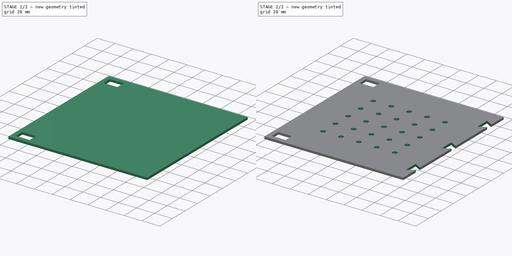
[diagram: build sequence overview — one tinted view per stage of 2, left to right]
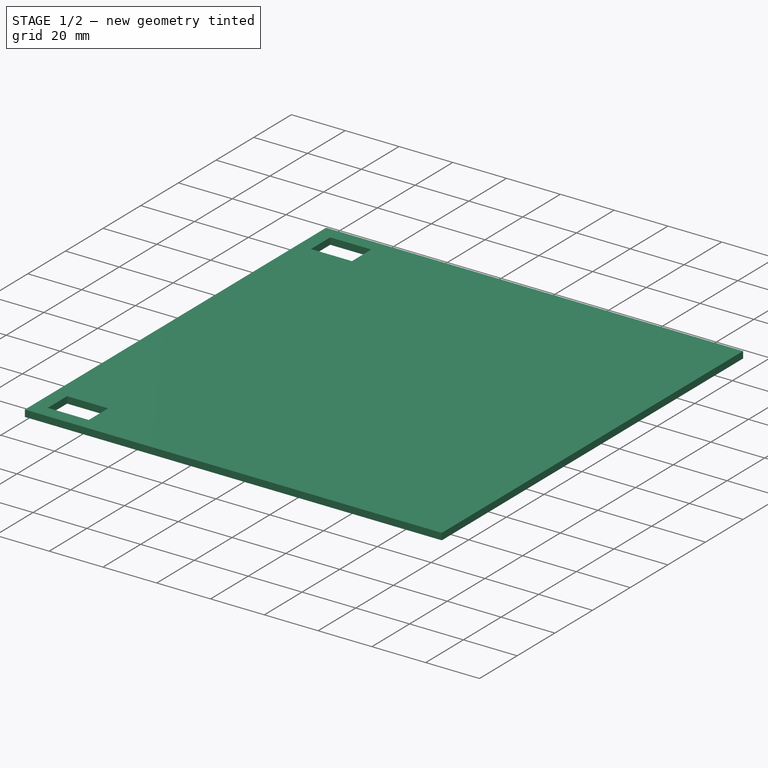
[diagram: stage 1 of 2 — iso view after this stage's code; geometry added in this stage tinted green]
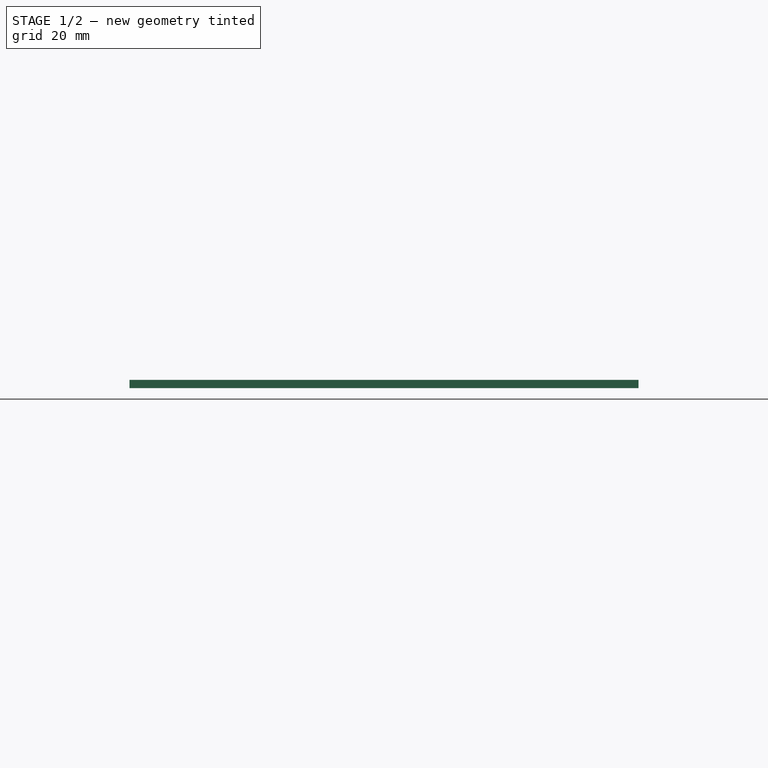
[diagram: stage 1 of 2 — front view after this stage's code; geometry added in this stage tinted green]
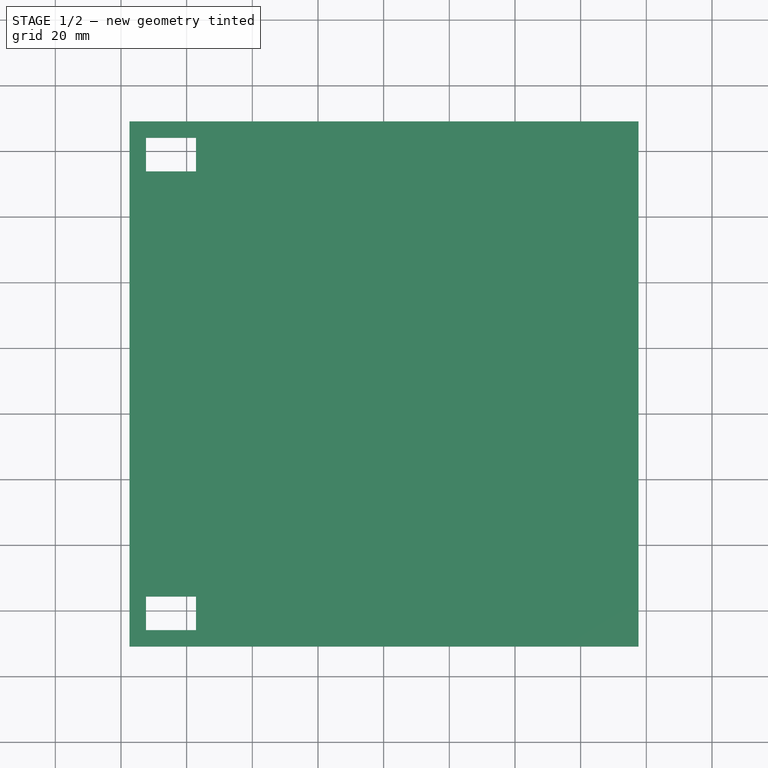
[diagram: stage 1 of 2 — top view after this stage's code; geometry added in this stage tinted green]
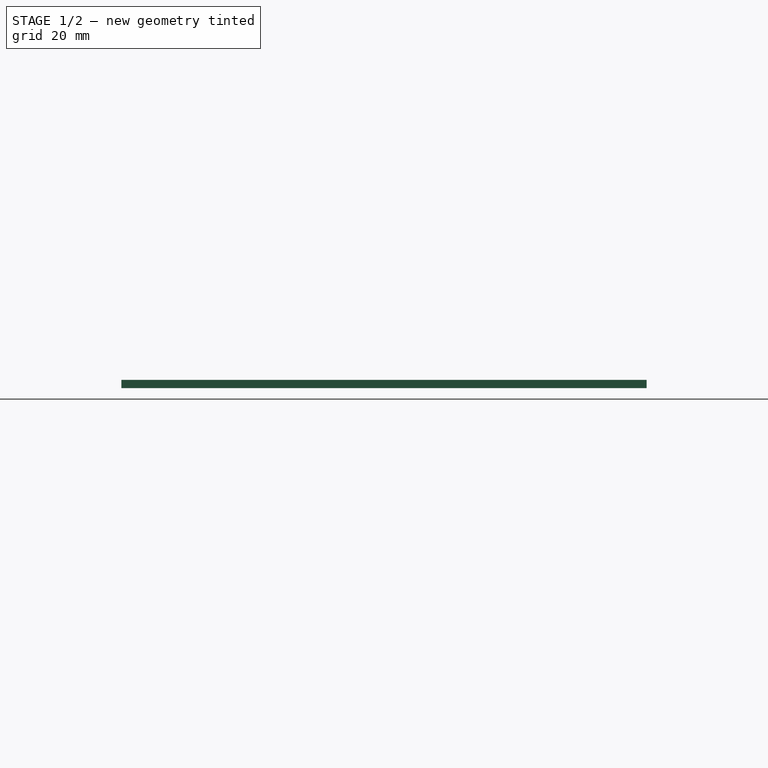
[diagram: stage 1 of 2 — right view after this stage's code; geometry added in this stage tinted green]
FCSTD DOCUMENT  (FreeCAD 0.21R33771 (Git))
Label: PlateA-2
License: All rights reserved
LicenseURL: https://en.wikipedia.org/wiki/All_rights_reserved
objects: Sketcher::SketchObject×4, PartDesign::Pocket×3, PartDesign::Pad×1, PartDesign::Body×1
note: 13 computed .brp shape members not serialized (recipe doc carries the construction recipe); baked Part::Feature solids carry a one-line shape summary decoded from their .brp

FEATURE [Sketcher::SketchObject] Sketch
  FullyConstrained = false
  MapMode = 5
  Support = -> [XY_Plane]
  sketch-geometry (4):
    g0: LineSegment StartX=-77.3933 StartY=-110.909 StartZ=0 EndX=-77.3933 EndY=49.0909 EndZ=0
    g1: LineSegment StartX=-77.3933 StartY=49.0909 StartZ=0 EndX=77.6067 EndY=49.0909 EndZ=0
    g2: LineSegment StartX=77.6067 StartY=49.0909 StartZ=0 EndX=77.6067 EndY=-110.909 EndZ=0
    g3: LineSegment StartX=77.6067 StartY=-110.909 StartZ=0 EndX=-77.3933 EndY=-110.909 EndZ=0
  constraints (10):
    c: Vertical(g0)
    c: Coincident(g0,g1)
    c: Horizontal(g1)
    c: Coincident(g1,g2)
    c: Vertical(g2)
    c: Coincident(g2,g3)
    c: Coincident(g3,g0)
    c: Horizontal(g3)
    c: DistanceX(g0,g1) = 155
    c: DistanceY(g0,g0) = 160
FEATURE [PartDesign::Pad] Pad
  Direction = (0,0,1)
  Length = 2.5
  Length2 = 10
  Profile = -> Sketch
  ReferenceAxis = -> Sketch [N_Axis]
  Type = 0
FEATURE [Sketcher::SketchObject] Sketch001
  ExternalGeometry = -> [Pad]
  FullyConstrained = true
  MapMode = 5
  Placement = pos=(0,0,2.5) rot=(0,0,1;0rad)
  Support = -> [Pad]
  sketch-geometry (8):
    g0: LineSegment StartX=-72.3933 StartY=44.0909 StartZ=0 EndX=-57.1433 EndY=44.0909 EndZ=0
    g1: LineSegment StartX=-57.1433 StartY=44.0909 StartZ=0 EndX=-57.1433 EndY=33.8409 EndZ=0
    g2: LineSegment StartX=-57.1433 StartY=33.8409 StartZ=0 EndX=-72.3933 EndY=33.8409 EndZ=0
    g3: LineSegment StartX=-72.3933 StartY=33.8409 StartZ=0 EndX=-72.3933 EndY=44.0909 EndZ=0
    g4: LineSegment StartX=-72.3933 StartY=-105.909 StartZ=0 EndX=-72.3933 EndY=-95.6591 EndZ=0
    g5: LineSegment StartX=-72.3933 StartY=-95.6591 StartZ=0 EndX=-57.1433 EndY=-95.6591 EndZ=0
    g6: LineSegment StartX=-57.1433 StartY=-95.6591 StartZ=0 EndX=-57.1433 EndY=-105.909 EndZ=0
    g7: LineSegment StartX=-57.1433 StartY=-105.909 StartZ=0 EndX=-72.3933 EndY=-105.909 EndZ=0
  constraints (25):
    c: Horizontal(g0)
    c: Coincident(g0,g1)
    c: Vertical(g1)
    c: Coincident(g1,g2)
    c: Horizontal(g2)
    c: Coincident(g2,g3)
    c: Coincident(g3,g0)
    c: Vertical(g4)
    c: Coincident(g4,g5)
    c: Coincident(g5,g6)
    c: Vertical(g6)
    c: Coincident(g6,g7)
    c: Coincident(g7,g4)
    c: Horizontal(g7)
    c: Horizontal(g5)
    c: DistanceY(g-3,g4) = 5
    c: DistanceY(g0,g-3) = 5
    c: DistanceX(g-3,g0) = 5
    c: DistanceX(g-3,g-3) = 0
    c: DistanceX(g-3,g4) = 5
    c: Vertical(g3)
    c: DistanceX(g0,g0) = 15.25
    c: DistanceX(g4,g5) = 15.25
    c: DistanceY(g6,g5) = 10.25
    c: DistanceY(g1,g0) = 10.25
FEATURE [PartDesign::Pocket] Pocket
  BaseFeature = -> Pad
  Direction = (0,0,-1)
  Length = 2.5
  Length2 = 5
  Profile = -> Sketch001
  ReferenceAxis = -> Sketch001 [N_Axis]
  Type = 0
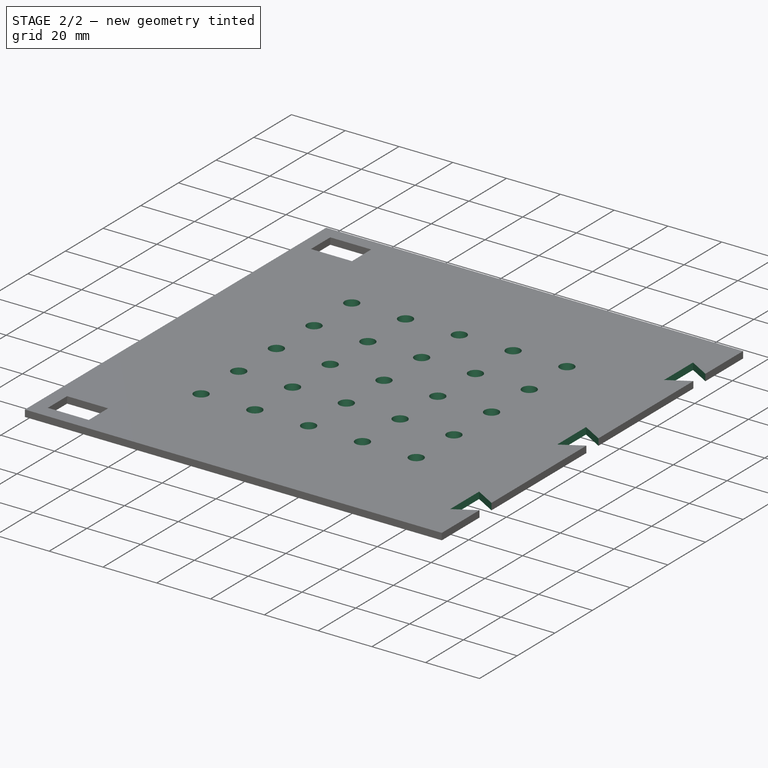
[diagram: stage 2 of 2 — iso view after this stage's code; geometry added in this stage tinted green]
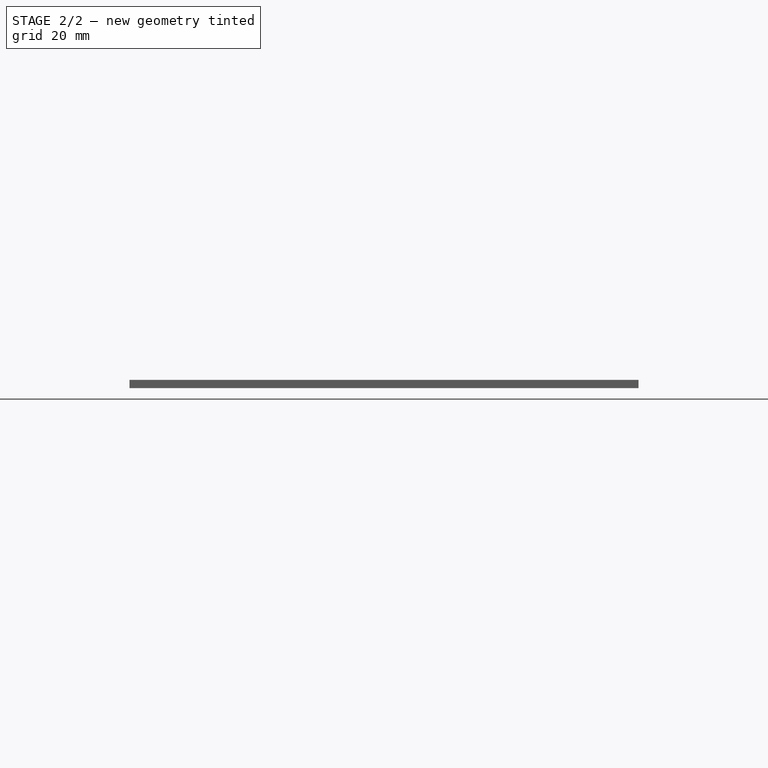
[diagram: stage 2 of 2 — front view after this stage's code; geometry added in this stage tinted green]
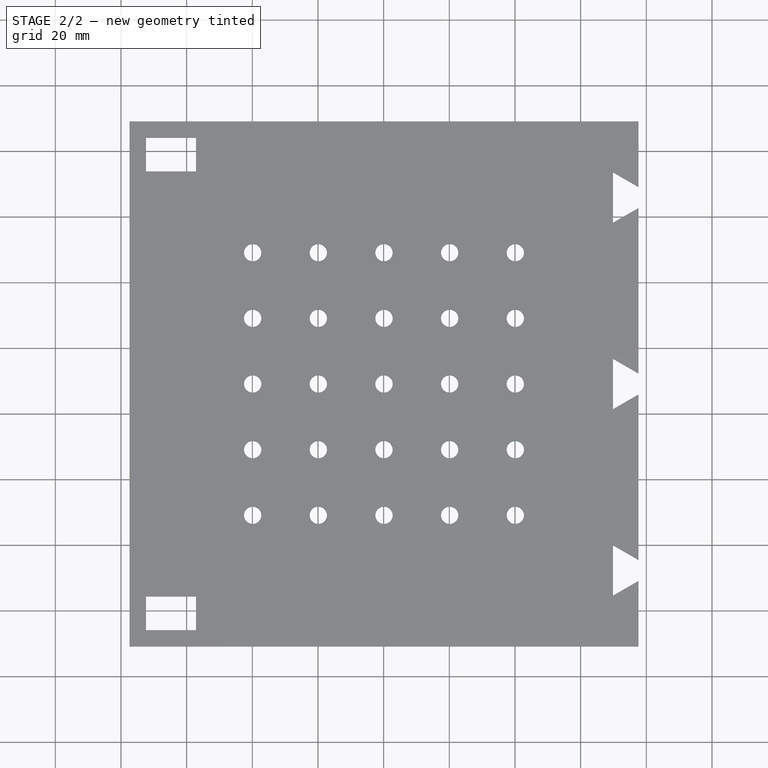
[diagram: stage 2 of 2 — top view after this stage's code; geometry added in this stage tinted green]
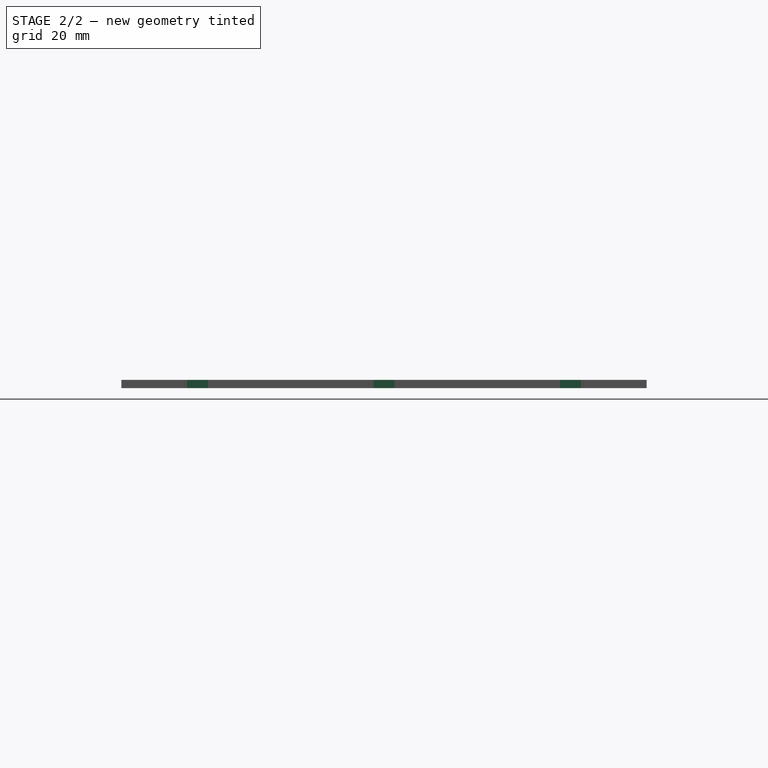
[diagram: stage 2 of 2 — right view after this stage's code; geometry added in this stage tinted green]
FEATURE [Sketcher::SketchObject] Sketch002
  ExternalGeometry = -> [Pocket]
  FullyConstrained = true
  MapMode = 5
  Placement = pos=(0,0,2.5) rot=(0,0,1;0rad)
  Support = -> [Pocket]
  sketch-geometry (26):
    g0: GeomPoint X=0.10674 Y=-30.9091 Z=0
    g1: Circle CenterX=-19.8933 CenterY=-30.9091 CenterZ=0 NormalX=0 NormalY=0 NormalZ=1 AngleXU=0 Radius=2.625
    g2: Circle CenterX=-39.8933 CenterY=-30.9091 CenterZ=0 NormalX=0 NormalY=0 NormalZ=1 AngleXU=0 Radius=2.625
    g3: Circle CenterX=0.10674 CenterY=-30.9091 CenterZ=0 NormalX=0 NormalY=0 NormalZ=1 AngleXU=0 Radius=2.625
    g4: Circle CenterX=20.1067 CenterY=-30.9091 CenterZ=0 NormalX=0 NormalY=0 NormalZ=1 AngleXU=0 Radius=2.625
    g5: Circle CenterX=40.1067 CenterY=-30.9091 CenterZ=0 NormalX=0 NormalY=0 NormalZ=1 AngleXU=0 Radius=2.625
    g6: Circle CenterX=-39.8933 CenterY=-10.9091 CenterZ=0 NormalX=0 NormalY=0 NormalZ=1 AngleXU=0 Radius=2.625
    g7: Circle CenterX=-19.8933 CenterY=-10.9091 CenterZ=0 NormalX=0 NormalY=0 NormalZ=1 AngleXU=0 Radius=2.625
    g8: Circle CenterX=0.10674 CenterY=-10.9091 CenterZ=0 NormalX=0 NormalY=0 NormalZ=1 AngleXU=0 Radius=2.625
    g9: Circle CenterX=20.1067 CenterY=-10.9091 CenterZ=0 NormalX=0 NormalY=0 NormalZ=1 AngleXU=0 Radius=2.625
    g10: Circle CenterX=40.1067 CenterY=-10.9091 CenterZ=0 NormalX=0 NormalY=0 NormalZ=1 AngleXU=0 Radius=2.625
    g11: Circle CenterX=-39.8933 CenterY=-50.9091 CenterZ=0 NormalX=0 NormalY=0 NormalZ=1 AngleXU=0 Radius=2.625
    g12: Circle CenterX=-19.8933 CenterY=-50.9091 CenterZ=0 NormalX=0 NormalY=0 NormalZ=1 AngleXU=0 Radius=2.625
    g13: Circle CenterX=0.10674 CenterY=-50.9091 CenterZ=0 NormalX=0 NormalY=0 NormalZ=1 AngleXU=0 Radius=2.625
    g14: Circle CenterX=20.1067 CenterY=-50.9091 CenterZ=0 NormalX=0 NormalY=0 NormalZ=1 AngleXU=0 Radius=2.625
    g15: Circle CenterX=40.1067 CenterY=-50.9091 CenterZ=0 NormalX=0 NormalY=0 NormalZ=1 AngleXU=0 Radius=2.625
    g16: Circle CenterX=-39.8933 CenterY=-70.9091 CenterZ=0 NormalX=0 NormalY=0 NormalZ=1 AngleXU=0 Radius=2.625
    g17: Circle CenterX=-19.8933 CenterY=-70.9091 CenterZ=0 NormalX=0 NormalY=0 NormalZ=1 AngleXU=0 Radius=2.625
    g18: Circle CenterX=0.10674 CenterY=-70.9091 CenterZ=0 NormalX=0 NormalY=0 NormalZ=1 AngleXU=0 Radius=2.625
    g19: Circle CenterX=20.1067 CenterY=-70.9091 CenterZ=0 NormalX=0 NormalY=0 NormalZ=1 AngleXU=0 Radius=2.625
    g20: Circle CenterX=40.1067 CenterY=-70.9091 CenterZ=0 NormalX=0 NormalY=0 NormalZ=1 AngleXU=0 Radius=2.625
    g21: Circle CenterX=-39.8933 CenterY=9.09091 CenterZ=0 NormalX=0 NormalY=0 NormalZ=1 AngleXU=0 Radius=2.625
    g22: Circle CenterX=-19.8933 CenterY=9.09091 CenterZ=0 NormalX=0 NormalY=0 NormalZ=1 AngleXU=0 Radius=2.625
    g23: Circle CenterX=0.10674 CenterY=9.09091 CenterZ=0 NormalX=0 NormalY=0 NormalZ=1 AngleXU=0 Radius=2.625
    g24: Circle CenterX=20.1067 CenterY=9.09091 CenterZ=0 NormalX=0 NormalY=0 NormalZ=1 AngleXU=0 Radius=2.625
    g25: Circle CenterX=40.1067 CenterY=9.09091 CenterZ=0 NormalX=0 NormalY=0 NormalZ=1 AngleXU=0 Radius=2.625
  constraints (76):
    c: DistanceX(g0,g-4) = 77.5
    c: DistanceY(g0,g-4) = 80
    c: Diameter(g25) = 5.25
    c: Diameter(g24) = 5.25
    c: Diameter(g23) = 5.25
    c: Diameter(g22) = 5.25
    c: Diameter(g21) = 5.25
    c: Diameter(g6) = 5.25
    c: Diameter(g7) = 5.25
    c: Diameter(g8) = 5.25
    c: Diameter(g9) = 5.25
    c: Diameter(g10) = 5.25
    c: Diameter(g2) = 5.25
    c: Diameter(g1) = 5.25
    c: Diameter(g3) = 5.25
    c: Diameter(g4) = 5.25
    c: Diameter(g5) = 5.25
    c: Diameter(g15) = 5.25
    c: Diameter(g14) = 5.25
    c: Diameter(g13) = 5.25
    c: Diameter(g12) = 5.25
    c: Diameter(g11) = 5.25
    c: Diameter(g16) = 5.25
    c: Diameter(g17) = 5.25
    c: Diameter(g18) = 5.25
    c: Diameter(g19) = 5.25
    c: Diameter(g20) = 5.25
    c: Coincident(g3,g0)
    c: DistanceX(g3,g4) = 20
    c: DistanceX(g3,g5) = 40
    c: DistanceX(g1,g3) = 20
    c: DistanceX(g2,g3) = 40
    c: DistanceY(g3,g2) = 0
    c: DistanceY(g3,g1) = 0
    c: DistanceY(g4,g5) = 0
    c: DistanceY(g3,g4) = 0
    c: DistanceY(g2,g6) = 20
    c: DistanceY(g2,g21) = 40
    c: DistanceY(g11,g2) = 20
    c: DistanceY(g16,g11) = 20
    c: DistanceX(g2,g11) = 0
    c: DistanceX(g11,g16) = 0
    c: DistanceX(g6,g2) = 0
    c: DistanceX(g21,g6) = 0
    c: DistanceY(g21,g22) = 0
    c: DistanceY(g21,g23) = 0
    c: DistanceY(g21,g24) = 0
    c: DistanceY(g21,g25) = 0
    c: DistanceY(g6,g7) = 0
    c: DistanceY(g8,g6) = 0
    c: DistanceY(g6,g9) = 0
    c: DistanceY(g6,g10) = 0
    c: DistanceY(g12,g11) = 0
    c: DistanceY(g11,g13) = 0
    c: DistanceY(g11,g14) = 0
    c: DistanceY(g11,g15) = 0
    c: DistanceY(g16,g17) = 0
    c: DistanceY(g17,g18) = 0
    c: DistanceY(g18,g19) = 0
    c: DistanceY(g19,g20) = 0
    c: DistanceX(g7,g1) = 0
    c: DistanceX(g22,g7) = 0
    c: DistanceX(g23,g8) = 0
    c: DistanceX(g8,g3) = 0
    c: DistanceX(g24,g9) = 0
    c: DistanceX(g9,g4) = 0
    c: DistanceX(g25,g10) = 0
    c: DistanceX(g10,g5) = 0
    c: DistanceX(g5,g15) = 0
    c: DistanceX(g15,g20) = 0
    c: DistanceX(g14,g19) = 0
    c: DistanceX(g4,g14) = 0
    c: DistanceX(g13,g18) = 0
    c: DistanceX(g3,g13) = 0
    c: DistanceX(g12,g17) = 0
    c: DistanceX(g1,g12) = 0
FEATURE [PartDesign::Pocket] Pocket001
  BaseFeature = -> Pocket
  Direction = (0,0,-1)
  Length = 2.5
  Length2 = 5
  Profile = -> Sketch002
  ReferenceAxis = -> Sketch002 [N_Axis]
  Type = 0
FEATURE [Sketcher::SketchObject] Sketch003
  ExternalGeometry = -> [Pocket001]
  FullyConstrained = true
  MapMode = 5
  Placement = pos=(0,0,2.5) rot=(0,0,1;0rad)
  Support = -> [Pocket001]
  sketch-geometry (12):
    g0: LineSegment StartX=77.6067 StartY=-90.9091 StartZ=0 EndX=69.8567 EndY=-95.3836 EndZ=0
    g1: LineSegment StartX=69.8567 StartY=-95.3836 StartZ=0 EndX=69.8567 EndY=-80.0336 EndZ=0
    g2: LineSegment StartX=69.8567 StartY=-80.0336 StartZ=0 EndX=77.6067 EndY=-84.508 EndZ=0
    g3: LineSegment StartX=77.6067 StartY=-84.508 StartZ=0 EndX=77.6067 EndY=-90.9091 EndZ=0
    g4: LineSegment StartX=77.6067 StartY=-34.1102 StartZ=0 EndX=69.8567 EndY=-38.5846 EndZ=0
    g5: LineSegment StartX=69.8567 StartY=-38.5846 StartZ=0 EndX=69.8567 EndY=-23.2346 EndZ=0
    g6: LineSegment StartX=69.8567 StartY=-23.2346 StartZ=0 EndX=77.6067 EndY=-27.7091 EndZ=0
    g7: LineSegment StartX=77.6067 StartY=-27.7091 StartZ=0 EndX=77.6067 EndY=-34.1102 EndZ=0
    g8: LineSegment StartX=77.6067 StartY=22.6898 StartZ=0 EndX=69.8567 EndY=18.2154 EndZ=0
    g9: LineSegment StartX=69.8567 StartY=18.2154 StartZ=0 EndX=69.8567 EndY=33.5654 EndZ=0
    g10: LineSegment StartX=69.8567 StartY=33.5654 StartZ=0 EndX=77.6067 EndY=29.0909 EndZ=0
    g11: LineSegment StartX=77.6067 StartY=29.0909 StartZ=0 EndX=77.6067 EndY=22.6898 EndZ=0
  constraints (37):
    c: Coincident(g0,g1)
    c: Vertical(g1)
    c: Coincident(g1,g2)
    c: Coincident(g2,g3)
    c: Coincident(g3,g0)
    c: Vertical(g3)
    c: Coincident(g4,g5)
    c: Vertical(g5)
    c: Coincident(g5,g6)
    c: Coincident(g6,g7)
    c: Coincident(g7,g4)
    c: Vertical(g7)
    c: Coincident(g8,g9)
    c: Vertical(g9)
    c: Coincident(g9,g10)
    c: Coincident(g10,g11)
    c: Coincident(g11,g8)
    c: PointOnObject(g8,g-3)
    c: PointOnObject(g4,g-3)
    c: PointOnObject(g0,g-3)
    c: Vertical(g11)
    c: Angle(g9,g10) = 1.0472
    c: Angle(g8,g9) = 1.0472
    c: Angle(g5,g6) = 1.0472
    c: Angle(g4,g5) = 1.0472
    c: Angle(g1,g2) = 1.0472
    c: Angle(g0,g1) = 1.0472
    c: DistanceX(g9,g-3) = 7.75
    c: DistanceX(g8,g5) = 0
    c: DistanceX(g4,g1) = 0
    c: DistanceY(g8,g9) = 15.35
    c: DistanceY(g4,g5) = 15.35
    c: DistanceY(g0,g1) = 15.35
    c: DistanceY(g10,g-3) = 20
    c: DistanceY(g-3,g0) = 20
    c: DistanceY(g6,g-3) = 76.8
    c: DistanceY(g-3,g-3) = 160
FEATURE [PartDesign::Pocket] Pocket002
  BaseFeature = -> Pocket001
  Direction = (0,0,-1)
  Length = 2.5
  Length2 = 5
  Profile = -> Sketch003
  ReferenceAxis = -> Sketch003 [N_Axis]
  Type = 0
FEATURE [PartDesign::Body] Body
  Group = -> [Sketch,Pad,Sketch001,Pocket,Sketch002,Pocket001,Sketch003,Pocket002]
  Origin = -> Origin
  Tip = -> Pocket002
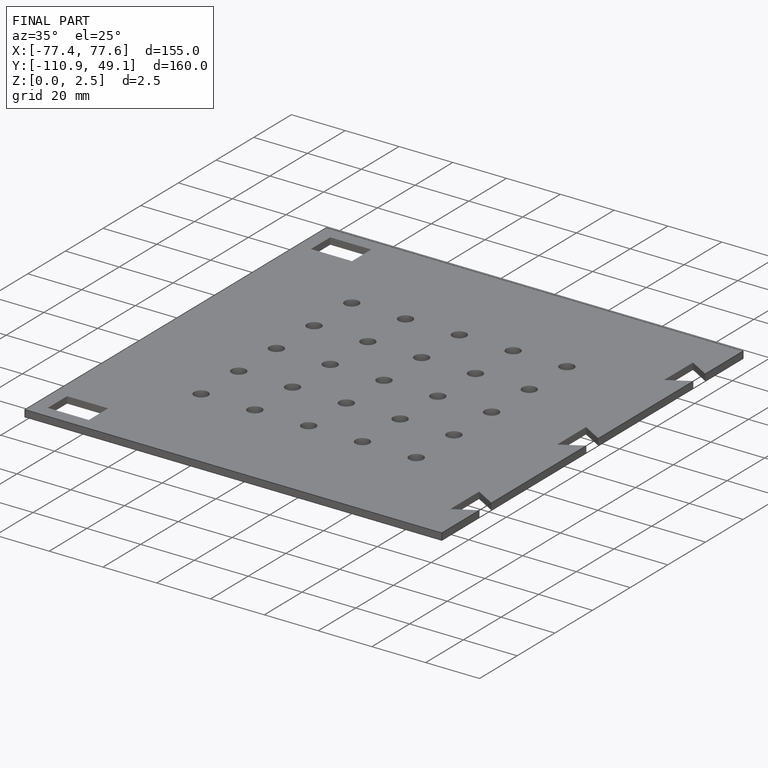
[diagram: finished part — iso view with bounding-box wireframe]
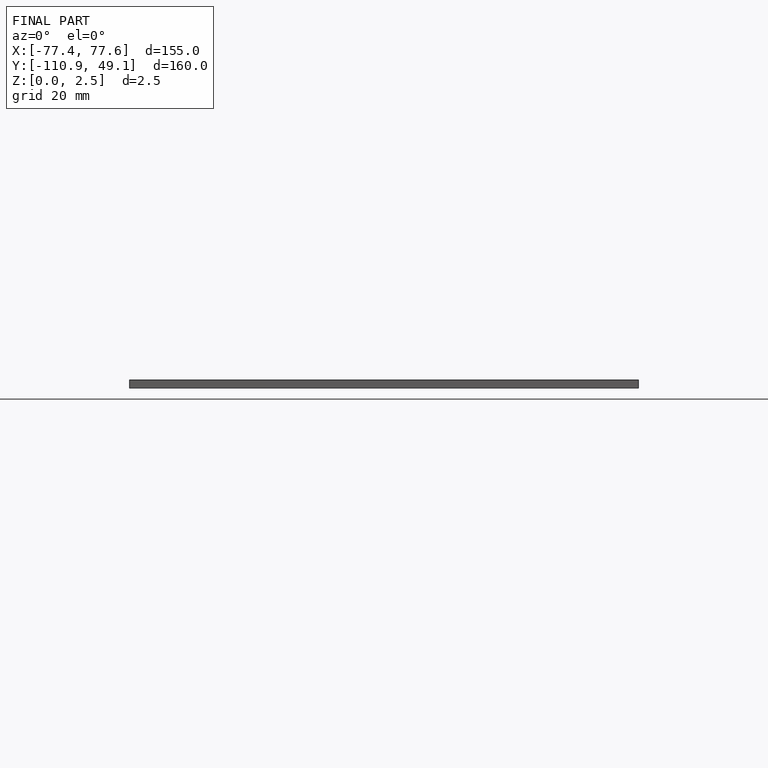
[diagram: finished part — front view with bounding-box wireframe]
